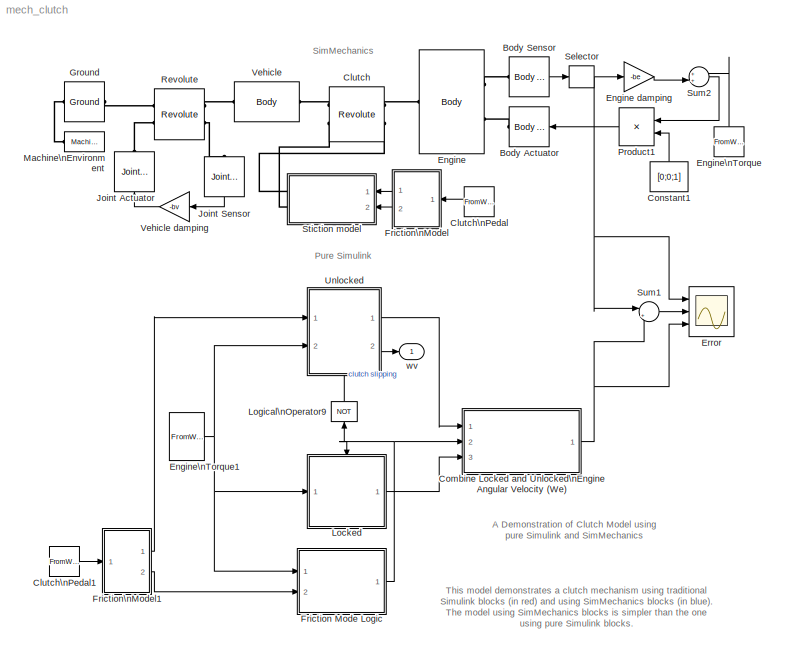
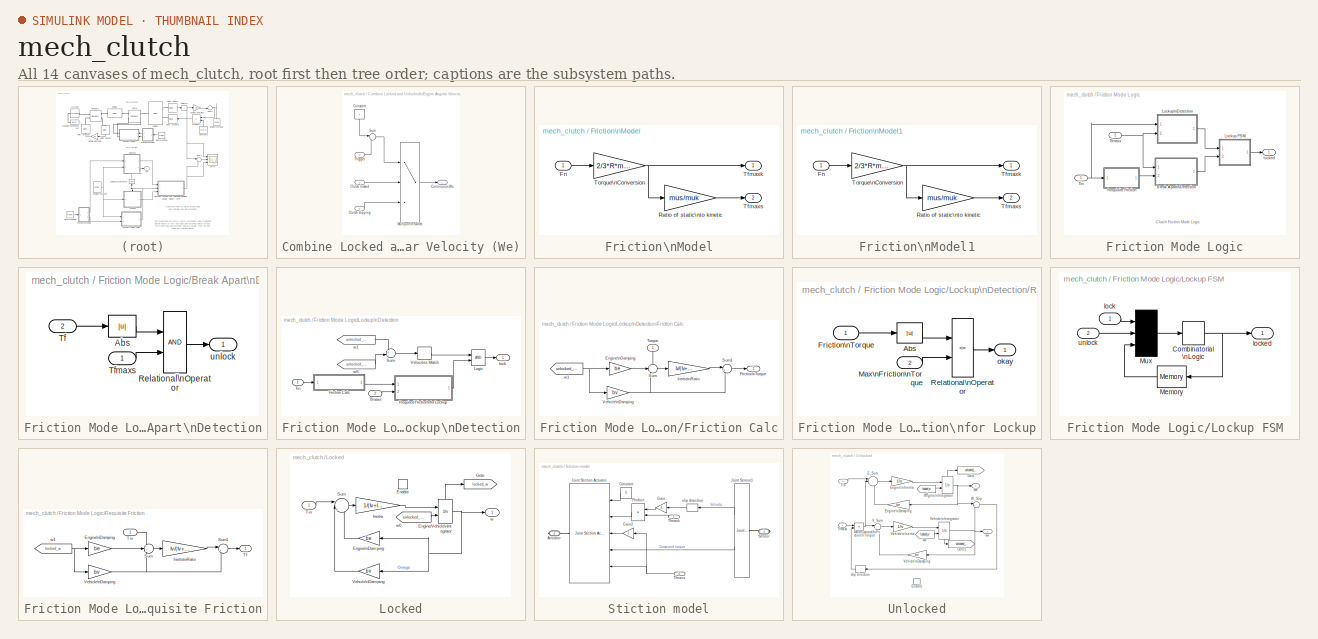
[diagram: thumbnail index - all 14 canvases of the model, root first then tree order]
MODEL mech_clutch
KIND model
CONFIG PreLoadFcn = load clutchparam.mat
BLOCK [Reference] Body Actuator  REF=mblibv1/Sensors & \nActuators/Body Actuator
  AccelerationUnits = m/s^2
  ActiveIO = on
  ActuationStyle = Force
  Angle = off
  AngleUnits = deg
  ArcAccelerationUnits = deg/s^2
  ArcVelocityUnits = deg/s
  ClassName = BodyActuatorForceTorque
  CoordPosition = on
  CoordPositionUnits = m
  DialogClass = MechanicalActuatorBlock
  Force = off
  ForceUnits = N
  Opaque = on
  PhysicalDomain = Mechanical
  PortType = blob
  Ports = [1, 0, 0, 0, 0, 0, 1]
  ReferenceFrame = Absolute (World)
  ShowPortLabels = on
  SourceBlock = mblibv1/Sensors & \nActuators/Body Actuator
  SourceType = msb
  Torque = on
  TorqueUnits = N-m
  VelocityUnits = m/s
  Width = 3
BLOCK [Reference] Body Sensor  REF=mblibv1/Sensors & \nActuators/Body Sensor
  Acceleration = off
  AccelerationUnits = m/s^2
  ActiveIO = on
  Angle = on
  AngleUnits = deg
  ArcAcceleration = off
  ArcAccelerationUnits = deg/s^2
  ArcVelocity = on
  ArcVelocityUnits = rad/s
  ClassName = BodySensor
  CoordPosition = off
  CoordPositionUnits = m
  DialogClass = MechanicalSensorBlock
  Muxed = on
  Opaque = on
  OutputVector = [ 3 ]
  PhysicalDomain = Mechanical
  PortType = blob
  Ports = [0, 1, 0, 0, 0, 1]
  Pose = off
  Quaternion = on
  QuaternionDDT = off
  QuaternionDT = off
  QuaternionUnits = off
  ReferenceFrame = Absolute (World)
  ShowPortLabels = on
  SourceBlock = mblibv1/Sensors & \nActuators/Body Sensor
  SourceType = msb
  Velocity = off
  VelocityUnits = m/s
  Width = 3
BLOCK [Reference] Clutch  REF=mblibv1/Joints/Revolute
  ClassName = Joint
  CutJoint = off
  DialogClass = JointBlock
  LConnTagsString = __newl0|SA1
  LeftPortType = blob
  MarkAsCut = off
  NumSAPorts = 2
  PhysicalDomain = mechanical
  Ports = [0, 0, 0, 0, 0, 2, 2]
  PrimitiveProps = R1$WORLD$[0 0 1]$revolute
  Primitives = revolute
  RConnTagsString = __newr0|SA1
  RightPortType = blob
  SourceBlock = mblibv1/Joints/Revolute
  SourceType = msb
  SubClassName = Unknown
BLOCK [FromWorkspace] Clutch\nPedal
  SampleTime = 0
  VariableName = Fn
BLOCK [FromWorkspace] Clutch\nPedal1
  SampleTime = 0
  VariableName = Fn
BLOCK [SubSystem] Combine Locked and Unlocked\nEngine Angular Velocity (We)
  MinAlgLoopOccurrences = off
  Ports = [3, 1]
  RTWSystemCode = Auto
  TreatAsAtomicUnit = off
BLOCK [Inport] Combine Locked and Unlocked\nEngine Angular Velocity (We)/Clutch locked
  IconDisplay = Port number
  LatchInput = off
  Port = 1
BLOCK [Inport] Combine Locked and Unlocked\nEngine Angular Velocity (We)/Clutch slipping
  IconDisplay = Port number
  LatchInput = off
  Port = 3
BLOCK [Constant] Combine Locked and Unlocked\nEngine Angular Velocity (We)/Constant
BLOCK [Outport] Combine Locked and Unlocked\nEngine Angular Velocity (We)/Continuous We
  BusOutputAsStruct = off
  IconDisplay = Port number
BLOCK [MultiPortSwitch] Combine Locked and Unlocked\nEngine Angular Velocity (We)/Multiport\nSwitch
  Inputs = 2
  Ports = [3, 1]
BLOCK [Sum] Combine Locked and Unlocked\nEngine Angular Velocity (We)/Sum
  IconShape = round
  Inputs = |++
  Ports = [2, 1]
BLOCK [Inport] Combine Locked and Unlocked\nEngine Angular Velocity (We)/Trigger
  IconDisplay = Port number
  LatchInput = off
  Port = 2
BLOCK [Constant] Constant1
  Value = [0;0;1]
BLOCK [Reference] Engine  REF=mblibv1/Bodies/Body
  CG = Left$CG$[0 0 0]$WORLD$WORLD$m$[0 0 0]$Euler X-Y-Z$deg$WORLD$false
  ClassName = Body
  Density = 1
  DensityUnits = kg/m^3
  DensityUse = false
  DialogClass = MechanicalBodyBlock
  Inertia = diag([0;0;Ie])
  InertiaUnits = kg*m^2
  LConnTagsString = CS1
  LeftPortType = workingframe
  Mass = 1
  MassUnits = kg
  PhysicalDomain = mechanical
  Ports = [0, 0, 0, 0, 0, 1, 2]
  RConnTagsString = CS2|CS3
  RightPortType = workingframe
  Shape = Cylinder
  ShapeDims = [1 1]
  ShapeUnits = m
  ShapeUse = false
  SourceBlock = mblibv1/Bodies/Body
  SourceType = msb
  SubClassName = Unknown
  WorkingFrames = Left$CS1$[0 0 0]$CG$CG$m$[0 0 0]$Euler X-Y-Z$deg$WORLD$true#Right$CS2$[0 0 0]$CG$CG$m$[0 0 0]$Euler X-Y-Z$deg$WORLD$true#Right$CS3$[0 0 0]$CG$CG$m$[0 0 0]$Euler X-Y-Z$deg$WORLD$true
BLOCK [Gain] Engine damping
  Gain = -be
BLOCK [FromWorkspace] Engine\nTorque
  SampleTime = 0
  VariableName = Tin
BLOCK [FromWorkspace] Engine\nTorque1
  SampleTime = 0
  VariableName = Tin
BLOCK [Scope] Error
  DataFormat = StructureWithTime
  NumInputPorts = 3
  Ports = [3]
  TimeRange = 10
  YMax = 0.8~5e-014~0.8
  YMin = 0~-1e-014~0
BLOCK [SubSystem] Friction Mode Logic
  MaskDisplay = plot([-3 1 1 3 -1 -1],[-1 -1 1 1 1 -1],-4,-5,4,5)
  MaskIconFrame = on
  MaskIconOpaque = off
  MaskIconRotate = none
  MaskIconUnits = autoscale
  MinAlgLoopOccurrences = off
  Ports = [2, 1]
  RTWSystemCode = Auto
  TreatAsAtomicUnit = off
BLOCK [SubSystem] Friction Mode Logic/Break Apart\nDetection
  MinAlgLoopOccurrences = off
  Ports = [2, 1]
  RTWSystemCode = Auto
  TreatAsAtomicUnit = off
BLOCK [Abs] Friction Mode Logic/Break Apart\nDetection/Abs
BLOCK [RelationalOperator] Friction Mode Logic/Break Apart\nDetection/Relational\nOperator
BLOCK [Inport] Friction Mode Logic/Break Apart\nDetection/Tf
  IconDisplay = Port number
  LatchInput = off
  Port = 2
BLOCK [Inport] Friction Mode Logic/Break Apart\nDetection/Tfmaxs
  IconDisplay = Port number
  LatchInput = off
  Port = 1
BLOCK [Outport] Friction Mode Logic/Break Apart\nDetection/unlock
  BusOutputAsStruct = off
  IconDisplay = Port number
  InitialOutput = 0
BLOCK [SubSystem] Friction Mode Logic/Lockup FSM
  MinAlgLoopOccurrences = off
  Ports = [2, 1]
  RTWSystemCode = Auto
  TreatAsAtomicUnit = off
BLOCK [CombinatorialLogic] Friction Mode Logic/Lockup FSM/Combinatorial \nLogic
  TruthTable = [0;1;0;0;1;1;1;0]
BLOCK [Memory] Friction Mode Logic/Lockup FSM/Memory
BLOCK [Mux] Friction Mode Logic/Lockup FSM/Mux
  Inputs = 3
  Ports = [3, 1]
BLOCK [Inport] Friction Mode Logic/Lockup FSM/lock
  IconDisplay = Port number
  LatchInput = off
  Port = 1
BLOCK [Outport] Friction Mode Logic/Lockup FSM/locked
  BusOutputAsStruct = off
  IconDisplay = Port number
  InitialOutput = 0
BLOCK [Inport] Friction Mode Logic/Lockup FSM/unlock
  IconDisplay = Port number
  LatchInput = off
  Port = 2
BLOCK [SubSystem] Friction Mode Logic/Lockup\nDetection
  MinAlgLoopOccurrences = off
  Ports = [2, 1]
  RTWSystemCode = Auto
  TreatAsAtomicUnit = off
BLOCK [SubSystem] Friction Mode Logic/Lockup\nDetection/Friction Calc
  MinAlgLoopOccurrences = off
  Ports = [1, 1]
  RTWSystemCode = Auto
  TreatAsAtomicUnit = off
BLOCK [Gain] Friction Mode Logic/Lockup\nDetection/Friction Calc/Engine\nDamping
  Gain = be
BLOCK [Outport] Friction Mode Logic/Lockup\nDetection/Friction Calc/Friction\nTorque
  BusOutputAsStruct = off
  IconDisplay = Port number
  InitialOutput = 0
BLOCK [Gain] Friction Mode Logic/Lockup\nDetection/Friction Calc/Inertia\nRatio
  Gain = Iv/(Iv+Ie)
BLOCK [Sum] Friction Mode Logic/Lockup\nDetection/Friction Calc/Sum
  IconShape = round
  Inputs = +--
  Ports = [3, 1]
BLOCK [Sum] Friction Mode Logic/Lockup\nDetection/Friction Calc/Sum1
  IconShape = round
  Inputs = |++
  Ports = [2, 1]
BLOCK [Inport] Friction Mode Logic/Lockup\nDetection/Friction Calc/Torque
  IconDisplay = Port number
  LatchInput = off
  Port = 1
BLOCK [Gain] Friction Mode Logic/Lockup\nDetection/Friction Calc/Vehicle\nDamping
  Gain = bv
BLOCK [From] Friction Mode Logic/Lockup\nDetection/Friction Calc/w1
  DialogController = Simulink.DDGSource
  GotoTag = unlocked_we
BLOCK [Logic] Friction Mode Logic/Lockup\nDetection/Logic
  Ports = [2, 1]
BLOCK [SubSystem] Friction Mode Logic/Lockup\nDetection/Required Friction\nfor Lockup
  MinAlgLoopOccurrences = off
  Ports = [2, 1]
  RTWSystemCode = Auto
  TreatAsAtomicUnit = off
BLOCK [Abs] Friction Mode Logic/Lockup\nDetection/Required Friction\nfor Lockup/Abs
BLOCK [Inport] Friction Mode Logic/Lockup\nDetection/Required Friction\nfor Lockup/Friction\nTorque
  IconDisplay = Port number
  LatchInput = off
  Port = 1
BLOCK [Inport] Friction Mode Logic/Lockup\nDetection/Required Friction\nfor Lockup/Max\nFriction\nTorque
  IconDisplay = Port number
  LatchInput = off
  Port = 2
BLOCK [RelationalOperator] Friction Mode Logic/Lockup\nDetection/Required Friction\nfor Lockup/Relational\nOperator
  Operator = <=
BLOCK [Outport] Friction Mode Logic/Lockup\nDetection/Required Friction\nfor Lockup/okay
  BusOutputAsStruct = off
  IconDisplay = Port number
  InitialOutput = 0
BLOCK [Sum] Friction Mode Logic/Lockup\nDetection/Sum
  IconShape = round
  Inputs = +-
  Ports = [2, 1]
BLOCK [Inport] Friction Mode Logic/Lockup\nDetection/Tfmaxs
  IconDisplay = Port number
  LatchInput = off
  Port = 2
BLOCK [Inport] Friction Mode Logic/Lockup\nDetection/Tin
  IconDisplay = Port number
  LatchInput = off
  Port = 1
BLOCK [HitCross] Friction Mode Logic/Lockup\nDetection/Velocities Match
  HitCrossingDirection = either
  Ports = [1, 1]
BLOCK [Outport] Friction Mode Logic/Lockup\nDetection/lock
  BusOutputAsStruct = off
  IconDisplay = Port number
  InitialOutput = 0
BLOCK [From] Friction Mode Logic/Lockup\nDetection/w1
  DialogController = Simulink.DDGSource
  GotoTag = unlocked_we
BLOCK [From] Friction Mode Logic/Lockup\nDetection/w6
  DialogController = Simulink.DDGSource
  GotoTag = unlocked_wv
BLOCK [SubSystem] Friction Mode Logic/Requisite Friction
  MinAlgLoopOccurrences = off
  Ports = [1, 1]
  RTWSystemCode = Auto
  TreatAsAtomicUnit = off
BLOCK [Gain] Friction Mode Logic/Requisite Friction/Engine\nDamping
  Gain = be
BLOCK [Gain] Friction Mode Logic/Requisite Friction/Inertia\nRatio
  Gain = Iv/(Iv+Ie)
BLOCK [Sum] Friction Mode Logic/Requisite Friction/Sum
  IconShape = round
  Inputs = +--
  Ports = [3, 1]
BLOCK [Sum] Friction Mode Logic/Requisite Friction/Sum1
  IconShape = round
  Inputs = |++
  Ports = [2, 1]
BLOCK [Outport] Friction Mode Logic/Requisite Friction/Tf
  BusOutputAsStruct = off
  IconDisplay = Port number
  InitialOutput = 0
BLOCK [Inport] Friction Mode Logic/Requisite Friction/Tin
  IconDisplay = Port number
  LatchInput = off
  Port = 1
BLOCK [Gain] Friction Mode Logic/Requisite Friction/Vehicle\nDamping
  Gain = bv
BLOCK [From] Friction Mode Logic/Requisite Friction/w1
  DialogController = Simulink.DDGSource
  GotoTag = locked_w
BLOCK [Inport] Friction Mode Logic/Tfmaxs
  IconDisplay = Port number
  LatchInput = off
  Port = 2
BLOCK [Inport] Friction Mode Logic/Tin
  IconDisplay = Port number
  LatchInput = off
  Port = 1
BLOCK [Outport] Friction Mode Logic/locked
  BusOutputAsStruct = off
  IconDisplay = Port number
  InitialOutput = 0
BLOCK [SubSystem] Friction\nModel
  MinAlgLoopOccurrences = off
  Ports = [1, 2]
  RTWSystemCode = Auto
  TreatAsAtomicUnit = off
BLOCK [Inport] Friction\nModel/Fn
  IconDisplay = Port number
  LatchInput = off
  Port = 1
BLOCK [Gain] Friction\nModel/Ratio of static\nto kinetic
  Gain = mus/muk
BLOCK [Outport] Friction\nModel/Tfmaxk
  BusOutputAsStruct = off
  IconDisplay = Port number
  InitialOutput = 0
BLOCK [Outport] Friction\nModel/Tfmaxs
  BusOutputAsStruct = off
  IconDisplay = Port number
  InitialOutput = 0
  Port = 2
BLOCK [Gain] Friction\nModel/Torque\nConversion
  Gain = 2/3*R*muk
BLOCK [SubSystem] Friction\nModel1
  MinAlgLoopOccurrences = off
  Ports = [1, 2]
  RTWSystemCode = Auto
  TreatAsAtomicUnit = off
BLOCK [Inport] Friction\nModel1/Fn
  IconDisplay = Port number
  LatchInput = off
  Port = 1
BLOCK [Gain] Friction\nModel1/Ratio of static\nto kinetic
  Gain = mus/muk
BLOCK [Outport] Friction\nModel1/Tfmaxk
  BusOutputAsStruct = off
  IconDisplay = Port number
  InitialOutput = 0
BLOCK [Outport] Friction\nModel1/Tfmaxs
  BusOutputAsStruct = off
  IconDisplay = Port number
  InitialOutput = 0
  Port = 2
BLOCK [Gain] Friction\nModel1/Torque\nConversion
  Gain = 2/3*R*muk
BLOCK [Reference] Ground  REF=mblibv1/Bodies/Ground
  ClassName = Ground
  CoordPosition = [0 0 0]
  CoordPositionUnits = m
  DialogClass = GroundBlock
  LeftPortType = env
  MachineId = [0 0]
  Opaque = on
  PhysicalDomain = Mechanical
  Ports = [0, 0, 0, 0, 0, 1, 1]
  RightPortType = workingframe
  ShowEnvPort = on
  ShowPortLabels = on
  SourceBlock = mblibv1/Bodies/Ground
  SourceType = msb
  StateVectorMgrId = -1
  UserData = DataTag0
  UserDataPersistent = on
BLOCK [Reference] Joint Actuator  REF=mblibv1/Sensors & \nActuators/Joint Actuator
  AccelerationUnits = m/s^2
  ActiveIO = on
  ActuationStyle = Force
  AngleUnits = deg
  ArcAccelerationUnits = deg/s^2
  ArcVelocityUnits = deg/s
  ClassName = JointActuator
  CoordPositionUnits = m
  DialogClass = MechanicalActuatorBlock
  ForceUnits = N
  Opaque = on
  PhysicalDomain = Mechanical
  PortType = blob
  Ports = [1, 0, 0, 0, 0, 0, 1]
  Primitive = R1
  ReferenceFrame = Absolute (INERTIAL)
  ShowPortLabels = on
  SourceBlock = mblibv1/Sensors & \nActuators/Joint Actuator
  SourceType = msb
  TorqueUnits = N-m
  VelocityUnits = m/s
  Width = 1
BLOCK [Reference] Joint Sensor  REF=mblibv1/Sensors & \nActuators/Joint Sensor
  Acceleration = off
  AccelerationUnits = m/s^2
  ActiveIO = on
  Angle = off
  AngleUnits = deg
  ArcAcceleration = off
  ArcAccelerationUnits = deg/s^2
  ArcVelocity = on
  ArcVelocityUnits = rad/s
  ClassName = JointSensor
  CoordPosition = on
  CoordPositionUnits = m
  DialogClass = MechanicalSensorBlock
  Force = off
  ForceUnits = N
  Muxed = on
  Opaque = on
  OutputVector = [ 1 ]
  PhysicalDomain = Mechanical
  PortType = blob
  Ports = [0, 1, 0, 0, 0, 1]
  Pose = off
  Primitive = R1
  Quaternion = on
  QuaternionDDT = off
  QuaternionDT = off
  QuaternionUnits = off
  ReactionForce = off
  ReactionForceUnits = N
  ReactionMoment = off
  ReactionMomentUnits = N-m
  ReactionReferenceFrame = Absolute (World)
  ReactionSensedSide = Base
  ReferenceFrame = Absolute (INERTIAL)
  ShowPortLabels = on
  SourceBlock = mblibv1/Sensors & \nActuators/Joint Sensor
  SourceType = msb
  Torque = off
  TorqueUnits = N-m
  Velocity = off
  VelocityUnits = m/s
  Width = 1
BLOCK [SubSystem] Locked
  MaskDisplay = plot(-1,-6,6,12,[0 3],[3 3],[3 1 1 3], [1 1 5 5],[2 4 4 2],[4 4 2 2],[4 5],[3 3])
  MaskIconFrame = on
  MaskIconOpaque = off
  MaskIconRotate = none
  MaskIconUnits = autoscale
  MinAlgLoopOccurrences = off
  Ports = [1, 1, 1]
  RTWSystemCode = Auto
  TreatAsAtomicUnit = on
BLOCK [EnablePort] Locked/Enable
  Ports = []
  StatesWhenEnabling = reset
BLOCK [Integrator] Locked/Engine//Vehicle\nIntegrator
  InitialConditionSource = external
  Ports = [2, 1, 0, 0, 1]
  ShowStatePort = on
BLOCK [Gain] Locked/Engine\nDamping
  Gain = be
BLOCK [Goto] Locked/Goto
  DialogController = Simulink.DDGSource
  GotoTag = locked_w
  TagVisibility = global
BLOCK [Gain] Locked/Inertia
  Gain = 1/(Iv+Ie)
BLOCK [Sum] Locked/Sum
  IconShape = round
  Inputs = ||+--
  Ports = [3, 1]
BLOCK [Inport] Locked/Tin
  IconDisplay = Port number
  LatchInput = off
  Port = 1
BLOCK [Gain] Locked/Vehicle\nDamping
  Gain = bv
BLOCK [Outport] Locked/w
  BusOutputAsStruct = off
  IconDisplay = Port number
  InitialOutput = 0
BLOCK [From] Locked/w0
  DialogController = Simulink.DDGSource
  GotoTag = unlocked_we
BLOCK [Logic] Logical\nOperator9
  Inputs = 1
  MaskDisplay = plot(0, -.25, 2., .5, [0 2 0 0], [-.5 0 .5 -.5],.2*cos(0:.1:2*pi)+2.2, .1*sin(0:.1:2*pi))
  MaskIconFrame = off
  MaskIconOpaque = on
  MaskIconRotate = port
  MaskIconUnits = autoscale
  Operator = NOT
  Ports = [1, 1]
BLOCK [Reference] Machine\nEnvironment  REF=mblibv1/Bodies/Machine\nEnvironment
  AnalysisType = Forward dynamics
  AngularAssemblyTolerance = 1e-3
  AngularAssemblyToleranceUnits = rad
  ClassName = Environment
  ConstraintAbsTolerance = 1e-4
  ConstraintRelTolerance = 1e-4
  ConstraintSolverType = Stabilizing
  DialogController = MECH.DialogSource
  DialogTemplateClass = MECH.MachineEnvironment
  Dimensionality = 3D Only
  Gravity = [0 0 0]
  GravityAsSignal = off
  GravityUnits = m/s^2
  LinearAssemblyTolerance = 1e-3
  LinearAssemblyToleranceUnits = m
  Opaque = on
  PerturbationSize = 1e-5
  PhysicalDomain = Mechanical
  PortType = env
  Ports = [0, 0, 0, 0, 0, 0, 1]
  ShowPortLabels = on
  SourceBlock = mblibv1/Bodies/Machine\nEnvironment
  SourceType = Mechanical
  StatePerturbationType = Fixed
  SyncWhenCopied = off
  Tag = Factory ground
  UseRobustSingularityHandling = off
  VisualizeMachine = on
BLOCK [Product] Product1
  Ports = [2, 1]
BLOCK [Reference] Revolute  REF=mblibv1/Joints/Revolute
  ClassName = Joint
  CutJoint = off
  DialogClass = JointBlock
  LConnTagsString = __newl0|SA1
  LeftPortType = blob
  MarkAsCut = off
  NumSAPorts = 2
  PhysicalDomain = mechanical
  Ports = [0, 0, 0, 0, 0, 2, 2]
  PrimitiveProps = R1$WORLD$[0 0 1]$revolute
  Primitives = revolute
  RConnTagsString = __newr0|SA1
  RightPortType = blob
  SourceBlock = mblibv1/Joints/Revolute
  SourceType = msb
  SubClassName = Unknown
BLOCK [Selector] Selector
  Elements = 3
  InputPortWidth = 3
  Ports = [1, 1]
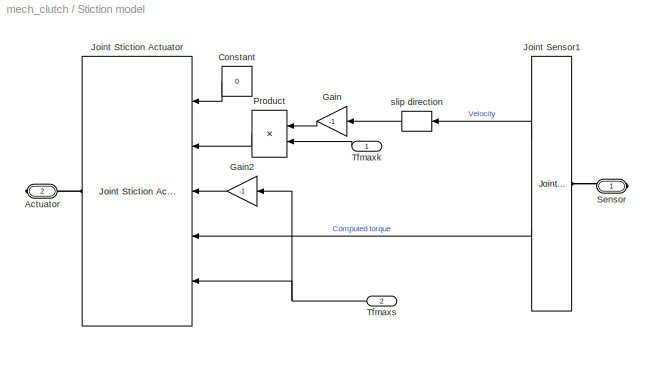
BLOCK [SubSystem] Stiction model
  MinAlgLoopOccurrences = off
  Ports = [2, 0, 0, 0, 0, 0, 2]
  RTWSystemCode = Auto
  TreatAsAtomicUnit = off
BLOCK [PMIOPort] Stiction model/Actuator
  Port = 2
  Side = Right
BLOCK [Constant] Stiction model/Constant
  Value = 0
BLOCK [Gain] Stiction model/Gain
  Gain = -1
BLOCK [Gain] Stiction model/Gain2
  Gain = -1
BLOCK [Reference] Stiction model/Joint Sensor1  REF=mblibv1/Sensors & \nActuators/Joint Sensor
  Acceleration = off
  AccelerationUnits = m/s^2
  ActiveIO = on
  Angle = off
  AngleUnits = deg
  ArcAcceleration = off
  ArcAccelerationUnits = deg/s^2
  ArcVelocity = on
  ArcVelocityUnits = rad/s
  ClassName = JointSensor
  CoordPosition = on
  CoordPositionUnits = m
  DialogClass = MechanicalSensorBlock
  Force = off
  ForceUnits = N
  Muxed = off
  Opaque = on
  OutputVector = [ 1 1 ]
  PhysicalDomain = Mechanical
  PortType = blob
  Ports = [0, 2, 0, 0, 0, 1]
  Pose = off
  Primitive = R1
  Quaternion = on
  QuaternionDDT = off
  QuaternionDT = off
  QuaternionUnits = off
  ReactionForce = off
  ReactionForceUnits = N
  ReactionMoment = off
  ReactionMomentUnits = N-m
  ReactionReferenceFrame = Absolute (World)
  ReactionSensedSide = Base
  ReferenceFrame = Absolute (INERTIAL)
  ShowPortLabels = on
  SourceBlock = mblibv1/Sensors & \nActuators/Joint Sensor
  SourceType = msb
  Torque = on
  TorqueUnits = N-m
  Velocity = off
  VelocityUnits = m/s
  Width = 2
BLOCK [Reference] Stiction model/Joint Stiction Actuator  REF=mblibv1/Sensors & \nActuators/Joint Stiction Actuator
  AccelerationUnits = m/s^2
  ActiveIO = on
  ActuationStyle = Force
  AngleUnits = deg
  ArcAccelerationUnits = deg/s^2
  ArcVelocityUnits = deg/s
  ClassName = JointStictionActuator
  CoordPositionUnits = m
  DialogClass = EventActuatorBlock
  ExternalForceUnits = N-m
  ExternalTorqueUnits = N-m
  ForceUnits = N
  FrictionalForceUnits = N-m
  FrictionalTorqueUnits = N-m
  LockingTolerance = 1e-3
  Opaque = on
  PhysicalDomain = Mechanical
  PortType = blob
  Ports = [5, 0, 0, 0, 0, 0, 1]
  Primitive = R1
  ShowPortLabels = on
  SourceBlock = mblibv1/Sensors & \nActuators/Joint Stiction Actuator
  SourceType = msb
  TorqueUnits = N-m
  VelocityUnits = m/s
  Width = 5
BLOCK [Product] Stiction model/Product
  Ports = [2, 1]
BLOCK [PMIOPort] Stiction model/Sensor
  Port = 1
  Side = Right
BLOCK [Inport] Stiction model/Tfmaxk
  IconDisplay = Port number
  LatchInput = off
  Port = 1
BLOCK [Inport] Stiction model/Tfmaxs
  IconDisplay = Port number
  LatchInput = off
  Port = 2
BLOCK [Signum] Stiction model/slip direction
BLOCK [Sum] Sum1
  IconShape = round
  Inputs = |+-
  Ports = [2, 1]
BLOCK [Sum] Sum2
  IconShape = round
  Inputs = ++|
  Ports = [2, 1]
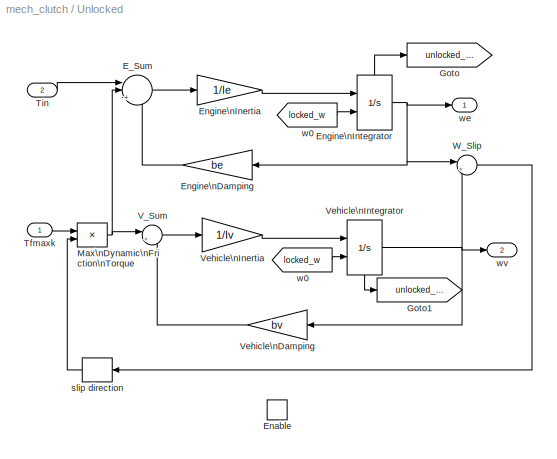
BLOCK [SubSystem] Unlocked
  MaskDisplay = plot(-1,-2,6,8,[0 3],[3 3],[3 1 1 3], [1 1 5 5],[2 4 4 2],[4 4 2 2],[4 5],[3 3])
  MaskIconFrame = on
  MaskIconOpaque = off
  MaskIconRotate = none
  MaskIconUnits = autoscale
  MinAlgLoopOccurrences = off
  Ports = [2, 2, 1]
  RTWSystemCode = Auto
  TreatAsAtomicUnit = on
BLOCK [Sum] Unlocked/E_Sum
  IconShape = round
  Inputs = ||+--
  Ports = [3, 1]
BLOCK [EnablePort] Unlocked/Enable
  Ports = []
  StatesWhenEnabling = reset
BLOCK [Gain] Unlocked/Engine\nDamping
  Gain = be
BLOCK [Gain] Unlocked/Engine\nInertia
  Gain = 1/Ie
BLOCK [Integrator] Unlocked/Engine\nIntegrator
  InitialConditionSource = external
  Ports = [2, 1, 0, 0, 1]
  ShowStatePort = on
BLOCK [Goto] Unlocked/Goto
  DialogController = Simulink.DDGSource
  GotoTag = unlocked_we
  TagVisibility = global
BLOCK [Goto] Unlocked/Goto1
  DialogController = Simulink.DDGSource
  GotoTag = unlocked_wv
  TagVisibility = global
BLOCK [Product] Unlocked/Max\nDynamic\nFriction\nTorque
  Ports = [2, 1]
BLOCK [Inport] Unlocked/Tfmaxk
  IconDisplay = Port number
  LatchInput = off
  Port = 1
BLOCK [Inport] Unlocked/Tin
  IconDisplay = Port number
  LatchInput = off
  Port = 2
BLOCK [Sum] Unlocked/V_Sum
  IconShape = round
  Inputs = |+-
  Ports = [2, 1]
BLOCK [Gain] Unlocked/Vehicle\nDamping
  Gain = bv
BLOCK [Gain] Unlocked/Vehicle\nInertia
  Gain = 1/Iv
BLOCK [Integrator] Unlocked/Vehicle\nIntegrator
  InitialConditionSource = external
  Ports = [2, 1, 0, 0, 1]
  ShowStatePort = on
BLOCK [Sum] Unlocked/W_Slip
  IconShape = round
  Inputs = |+-
  Ports = [2, 1]
BLOCK [Signum] Unlocked/slip direction
BLOCK [From] Unlocked/w0
  DialogController = Simulink.DDGSource
  GotoTag = locked_w
BLOCK [From] Unlocked/w0 
  DialogController = Simulink.DDGSource
  GotoTag = locked_w
BLOCK [Outport] Unlocked/we
  BusOutputAsStruct = off
  IconDisplay = Port number
  InitialOutput = 0
BLOCK [Outport] Unlocked/wv
  BusOutputAsStruct = off
  IconDisplay = Port number
  InitialOutput = 0
  Port = 2
BLOCK [Reference] Vehicle  REF=mblibv1/Bodies/Body
  CG = Left$CG$[0 0 0]$WORLD$WORLD$m$[0 0 0]$Euler X-Y-Z$deg$WORLD$false
  ClassName = Body
  Density = 1
  DensityUnits = kg/m^3
  DensityUse = false
  DialogClass = MechanicalBodyBlock
  Inertia = diag([0;0;Iv])
  InertiaUnits = kg*m^2
  LConnTagsString = CS1
  LeftPortType = workingframe
  Mass = 0
  MassUnits = kg
  PhysicalDomain = mechanical
  Ports = [0, 0, 0, 0, 0, 1, 1]
  RConnTagsString = CS2
  RightPortType = workingframe
  Shape = Cylinder
  ShapeDims = [1 1]
  ShapeUnits = m
  ShapeUse = false
  SourceBlock = mblibv1/Bodies/Body
  SourceType = msb
  SubClassName = Unknown
  WorkingFrames = Left$CS1$[0 0 0]$CG$CG$m$[0 0 0]$Euler X-Y-Z$deg$WORLD$true#Right$CS2$[0 0 0]$CG$CG$m$[0 0 0]$Euler X-Y-Z$deg$WORLD$true
BLOCK [Gain] Vehicle damping
  Gain = -bv
BLOCK [Outport] wv
  BusOutputAsStruct = off
  IconDisplay = Port number
  InitialOutput = 0
ANNOTATION (root): A Demonstration of Clutch Model using\npure Simulink and SimMechanics
ANNOTATION (root): Pure Simulink
ANNOTATION (root): SimMechanics
ANNOTATION (root): This model demonstrates a clutch mechanism using traditional \nSimulink blocks (in red) and using SimMechanics blocks (in blue).\nThe model using SimMechanics blocks is simpler than the one\nusing pure Simulink blocks.
ANNOTATION Friction Mode Logic: Clutch Friction Mode Logic
LINE Body Sensor:1 -> Selector:1
LINE Clutch\nPedal1:1 -> Friction\nModel1:1
LINE Clutch\nPedal:1 -> Friction\nModel:1
LINE Combine Locked and Unlocked\nEngine Angular Velocity (We)/Clutch locked:1 -> Combine Locked and Unlocked\nEngine Angular Velocity (We)/Multiport\nSwitch:2
LINE Combine Locked and Unlocked\nEngine Angular Velocity (We)/Clutch slipping:1 -> Combine Locked and Unlocked\nEngine Angular Velocity (We)/Multiport\nSwitch:3
LINE Combine Locked and Unlocked\nEngine Angular Velocity (We)/Constant:1 -> Combine Locked and Unlocked\nEngine Angular Velocity (We)/Sum:1
LINE Combine Locked and Unlocked\nEngine Angular Velocity (We)/Multiport\nSwitch:1 -> Combine Locked and Unlocked\nEngine Angular Velocity (We)/Continuous We:1
LINE Combine Locked and Unlocked\nEngine Angular Velocity (We)/Sum:1 -> Combine Locked and Unlocked\nEngine Angular Velocity (We)/Multiport\nSwitch:1
LINE Combine Locked and Unlocked\nEngine Angular Velocity (We)/Trigger:1 -> Combine Locked and Unlocked\nEngine Angular Velocity (We)/Sum:2
NET Combine Locked and Unlocked\nEngine Angular Velocity (We):1 -> Error:3, Sum1:2
LINE Constant1:1 -> Product1:2
LINE Engine damping:1 -> Sum2:2
NET Engine\nTorque1:1 -> Friction Mode Logic:1, Locked:1, Unlocked:2
LINE Engine\nTorque:1 -> Sum2:1
LINE Friction Mode Logic/Break Apart\nDetection/Abs:1 -> Friction Mode Logic/Break Apart\nDetection/Relational\nOperator:1
LINE Friction Mode Logic/Break Apart\nDetection/Relational\nOperator:1 -> Friction Mode Logic/Break Apart\nDetection/unlock:1
LINE Friction Mode Logic/Break Apart\nDetection/Tf:1 -> Friction Mode Logic/Break Apart\nDetection/Abs:1
LINE Friction Mode Logic/Break Apart\nDetection/Tfmaxs:1 -> Friction Mode Logic/Break Apart\nDetection/Relational\nOperator:2
LINE Friction Mode Logic/Break Apart\nDetection:1 -> Friction Mode Logic/Lockup FSM:2
NET Friction Mode Logic/Lockup FSM/Combinatorial \nLogic:1 -> Friction Mode Logic/Lockup FSM/Memory:1, Friction Mode Logic/Lockup FSM/locked:1
LINE Friction Mode Logic/Lockup FSM/Memory:1 -> Friction Mode Logic/Lockup FSM/Mux:3
LINE Friction Mode Logic/Lockup FSM/Mux:1 -> Friction Mode Logic/Lockup FSM/Combinatorial \nLogic:1
LINE Friction Mode Logic/Lockup FSM/lock:1 -> Friction Mode Logic/Lockup FSM/Mux:1
LINE Friction Mode Logic/Lockup FSM/unlock:1 -> Friction Mode Logic/Lockup FSM/Mux:2
LINE Friction Mode Logic/Lockup FSM:1 -> Friction Mode Logic/locked:1
LINE Friction Mode Logic/Lockup\nDetection/Friction Calc/Engine\nDamping:1 -> Friction Mode Logic/Lockup\nDetection/Friction Calc/Sum:2
LINE Friction Mode Logic/Lockup\nDetection/Friction Calc/Inertia\nRatio:1 -> Friction Mode Logic/Lockup\nDetection/Friction Calc/Sum1:1
LINE Friction Mode Logic/Lockup\nDetection/Friction Calc/Sum1:1 -> Friction Mode Logic/Lockup\nDetection/Friction Calc/Friction\nTorque:1
LINE Friction Mode Logic/Lockup\nDetection/Friction Calc/Sum:1 -> Friction Mode Logic/Lockup\nDetection/Friction Calc/Inertia\nRatio:1
LINE Friction Mode Logic/Lockup\nDetection/Friction Calc/Torque:1 -> Friction Mode Logic/Lockup\nDetection/Friction Calc/Sum:1
NET Friction Mode Logic/Lockup\nDetection/Friction Calc/Vehicle\nDamping:1 -> Friction Mode Logic/Lockup\nDetection/Friction Calc/Sum1:2, Friction Mode Logic/Lockup\nDetection/Friction Calc/Sum:3
NET Friction Mode Logic/Lockup\nDetection/Friction Calc/w1:1 -> Friction Mode Logic/Lockup\nDetection/Friction Calc/Engine\nDamping:1, Friction Mode Logic/Lockup\nDetection/Friction Calc/Vehicle\nDamping:1
LINE Friction Mode Logic/Lockup\nDetection/Friction Calc:1 -> Friction Mode Logic/Lockup\nDetection/Required Friction\nfor Lockup:1
LINE Friction Mode Logic/Lockup\nDetection/Logic:1 -> Friction Mode Logic/Lockup\nDetection/lock:1
LINE Friction Mode Logic/Lockup\nDetection/Required Friction\nfor Lockup/Abs:1 -> Friction Mode Logic/Lockup\nDetection/Required Friction\nfor Lockup/Relational\nOperator:1
LINE Friction Mode Logic/Lockup\nDetection/Required Friction\nfor Lockup/Friction\nTorque:1 -> Friction Mode Logic/Lockup\nDetection/Required Friction\nfor Lockup/Abs:1
LINE Friction Mode Logic/Lockup\nDetection/Required Friction\nfor Lockup/Max\nFriction\nTorque:1 -> Friction Mode Logic/Lockup\nDetection/Required Friction\nfor Lockup/Relational\nOperator:2
LINE Friction Mode Logic/Lockup\nDetection/Required Friction\nfor Lockup/Relational\nOperator:1 -> Friction Mode Logic/Lockup\nDetection/Required Friction\nfor Lockup/okay:1
LINE Friction Mode Logic/Lockup\nDetection/Required Friction\nfor Lockup:1 -> Friction Mode Logic/Lockup\nDetection/Logic:2
LINE Friction Mode Logic/Lockup\nDetection/Sum:1 -> Friction Mode Logic/Lockup\nDetection/Velocities Match:1
LINE Friction Mode Logic/Lockup\nDetection/Tfmaxs:1 -> Friction Mode Logic/Lockup\nDetection/Required Friction\nfor Lockup:2
LINE Friction Mode Logic/Lockup\nDetection/Tin:1 -> Friction Mode Logic/Lockup\nDetection/Friction Calc:1
LINE Friction Mode Logic/Lockup\nDetection/Velocities Match:1 -> Friction Mode Logic/Lockup\nDetection/Logic:1
LINE Friction Mode Logic/Lockup\nDetection/w1:1 -> Friction Mode Logic/Lockup\nDetection/Sum:1
LINE Friction Mode Logic/Lockup\nDetection/w6:1 -> Friction Mode Logic/Lockup\nDetection/Sum:2
LINE Friction Mode Logic/Lockup\nDetection:1 -> Friction Mode Logic/Lockup FSM:1
LINE Friction Mode Logic/Requisite Friction/Engine\nDamping:1 -> Friction Mode Logic/Requisite Friction/Sum:2
LINE Friction Mode Logic/Requisite Friction/Inertia\nRatio:1 -> Friction Mode Logic/Requisite Friction/Sum1:1
LINE Friction Mode Logic/Requisite Friction/Sum1:1 -> Friction Mode Logic/Requisite Friction/Tf:1
LINE Friction Mode Logic/Requisite Friction/Sum:1 -> Friction Mode Logic/Requisite Friction/Inertia\nRatio:1
LINE Friction Mode Logic/Requisite Friction/Tin:1 -> Friction Mode Logic/Requisite Friction/Sum:1
NET Friction Mode Logic/Requisite Friction/Vehicle\nDamping:1 -> Friction Mode Logic/Requisite Friction/Sum1:2, Friction Mode Logic/Requisite Friction/Sum:3
NET Friction Mode Logic/Requisite Friction/w1:1 -> Friction Mode Logic/Requisite Friction/Engine\nDamping:1, Friction Mode Logic/Requisite Friction/Vehicle\nDamping:1
LINE Friction Mode Logic/Requisite Friction:1 -> Friction Mode Logic/Break Apart\nDetection:2
NET Friction Mode Logic/Tfmaxs:1 -> Friction Mode Logic/Break Apart\nDetection:1, Friction Mode Logic/Lockup\nDetection:2
NET Friction Mode Logic/Tin:1 -> Friction Mode Logic/Lockup\nDetection:1, Friction Mode Logic/Requisite Friction:1
NET Friction Mode Logic:1 -> Combine Locked and Unlocked\nEngine Angular Velocity (We):2, Locked:enable, Logical\nOperator9:1
LINE Friction\nModel/Fn:1 -> Friction\nModel/Torque\nConversion:1
LINE Friction\nModel/Ratio of static\nto kinetic:1 -> Friction\nModel/Tfmaxs:1
NET Friction\nModel/Torque\nConversion:1 -> Friction\nModel/Ratio of static\nto kinetic:1, Friction\nModel/Tfmaxk:1
LINE Friction\nModel1/Fn:1 -> Friction\nModel1/Torque\nConversion:1
LINE Friction\nModel1/Ratio of static\nto kinetic:1 -> Friction\nModel1/Tfmaxs:1
NET Friction\nModel1/Torque\nConversion:1 -> Friction\nModel1/Ratio of static\nto kinetic:1, Friction\nModel1/Tfmaxk:1
LINE Friction\nModel1:1 -> Unlocked:1
LINE Friction\nModel1:2 -> Friction Mode Logic:2
LINE Friction\nModel:1 -> Stiction model:1
LINE Friction\nModel:2 -> Stiction model:2
LINE Joint Sensor:1 -> Vehicle damping:1
NET Locked/Engine//Vehicle\nIntegrator:1 -> Locked/Engine\nDamping:1, Locked/Vehicle\nDamping:1, Locked/w:1
LINE Locked/Engine//Vehicle\nIntegrator:state -> Locked/Goto:1
LINE Locked/Engine\nDamping:1 -> Locked/Sum:3
LINE Locked/Inertia:1 -> Locked/Engine//Vehicle\nIntegrator:1
LINE Locked/Sum:1 -> Locked/Inertia:1
LINE Locked/Tin:1 -> Locked/Sum:1
LINE Locked/Vehicle\nDamping:1 -> Locked/Sum:2
LINE Locked/w0:1 -> Locked/Engine//Vehicle\nIntegrator:2
LINE Locked:1 -> Combine Locked and Unlocked\nEngine Angular Velocity (We):3
LINE Logical\nOperator9:1 -> Unlocked:enable
LINE Product1:1 -> Body Actuator:1
NET Selector:1 -> Engine damping:1, Error:1, Sum1:1
LINE Stiction model/Constant:1 -> Stiction model/Joint Stiction Actuator:1
LINE Stiction model/Gain2:1 -> Stiction model/Joint Stiction Actuator:3
LINE Stiction model/Gain:1 -> Stiction model/Product:1
LINE Stiction model/Joint Sensor1:1 -> Stiction model/slip direction:1
LINE Stiction model/Joint Sensor1:2 -> Stiction model/Joint Stiction Actuator:4
LINE Stiction model/Product:1 -> Stiction model/Joint Stiction Actuator:2
LINE Stiction model/Tfmaxk:1 -> Stiction model/Product:2
NET Stiction model/Tfmaxs:1 -> Stiction model/Gain2:1, Stiction model/Joint Stiction Actuator:5
LINE Stiction model/slip direction:1 -> Stiction model/Gain:1
LINE Sum1:1 -> Error:2
LINE Sum2:1 -> Product1:1
LINE Unlocked/E_Sum:1 -> Unlocked/Engine\nInertia:1
LINE Unlocked/Engine\nDamping:1 -> Unlocked/E_Sum:3
LINE Unlocked/Engine\nInertia:1 -> Unlocked/Engine\nIntegrator:1
NET Unlocked/Engine\nIntegrator:1 -> Unlocked/Engine\nDamping:1, Unlocked/W_Slip:1, Unlocked/we:1
LINE Unlocked/Engine\nIntegrator:state -> Unlocked/Goto:1
NET Unlocked/Max\nDynamic\nFriction\nTorque:1 -> Unlocked/E_Sum:2, Unlocked/V_Sum:1
LINE Unlocked/Tfmaxk:1 -> Unlocked/Max\nDynamic\nFriction\nTorque:1
LINE Unlocked/Tin:1 -> Unlocked/E_Sum:1
LINE Unlocked/V_Sum:1 -> Unlocked/Vehicle\nInertia:1
LINE Unlocked/Vehicle\nDamping:1 -> Unlocked/V_Sum:2
LINE Unlocked/Vehicle\nInertia:1 -> Unlocked/Vehicle\nIntegrator:1
NET Unlocked/Vehicle\nIntegrator:1 -> Unlocked/Vehicle\nDamping:1, Unlocked/W_Slip:2, Unlocked/wv:1
LINE Unlocked/Vehicle\nIntegrator:state -> Unlocked/Goto1:1
LINE Unlocked/W_Slip:1 -> Unlocked/slip direction:1
LINE Unlocked/slip direction:1 -> Unlocked/Max\nDynamic\nFriction\nTorque:2
LINE Unlocked/w0 :1 -> Unlocked/Engine\nIntegrator:2
LINE Unlocked/w0:1 -> Unlocked/Vehicle\nIntegrator:2
LINE Unlocked:1 -> Combine Locked and Unlocked\nEngine Angular Velocity (We):1
LINE Unlocked:2 -> wv:1
LINE Vehicle damping:1 -> Joint Actuator:1
PLINE Body Actuator:RConn1 -- Engine:RConn2
PLINE Body Sensor:LConn1 -- Engine:RConn1
PLINE Clutch:LConn1 -- Engine:LConn1
PLINE Clutch:LConn2 -- Stiction model:RConn1
PLINE Clutch:RConn1 -- Vehicle:RConn1
PLINE Clutch:RConn2 -- Stiction model:RConn2
PLINE Ground:LConn1 -- Machine\nEnvironment:RConn1
PLINE Ground:RConn1 -- Revolute:LConn1
PLINE Joint Actuator:RConn1 -- Revolute:LConn2
PLINE Joint Sensor:LConn1 -- Revolute:RConn2
PLINE Revolute:RConn1 -- Vehicle:LConn1
PLINE Stiction model/Actuator:RConn1 -- Stiction model/Joint Stiction Actuator:RConn1
PLINE Stiction model/Joint Sensor1:LConn1 -- Stiction model/Sensor:RConn1
note: NET lines group one-source signal fan-out (src -> all destinations, sorted); 1:1 wires keep LINE
